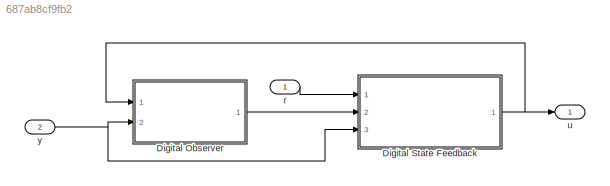
MODEL slx_687ab8cf9fb2
KIND model
CONFIG AbsTol = auto
CONFIG EnableMultiTasking = on
CONFIG FixedStep = auto
CONFIG MaxStep = auto
CONFIG MinStep = auto
CONFIG RelTol = 1e-3
CONFIG SampleTimeConstraint = Unconstrained
CONFIG SolverName = FixedStepAuto
CONFIG StartTime = 0.0
CONFIG StopTime = 10.0
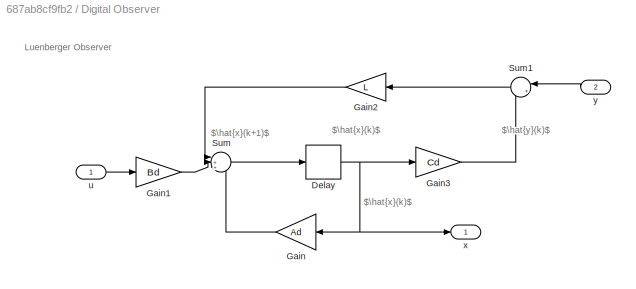
BLOCK [SubSystem] Digital Observer
  NameLocation = top
  Ports = [2, 1]
  RequestExecContextInheritance = off
BLOCK [Delay] Digital Observer/Delay
  DelayLength = 1
  InputPortMap = u0
  Ports = [1, 1]
  SampleTime = Ts
BLOCK [Gain] Digital Observer/Gain
  Gain = Ad
  Multiplication = Matrix(K*u)
BLOCK [Gain] Digital Observer/Gain1
  Gain = Bd
  Multiplication = Matrix(K*u)
BLOCK [Gain] Digital Observer/Gain2
  Gain = L
  Multiplication = Matrix(K*u)
BLOCK [Gain] Digital Observer/Gain3
  Gain = Cd
  Multiplication = Matrix(K*u)
BLOCK [Sum] Digital Observer/Sum
  Inputs = |+++
  Ports = [3, 1]
BLOCK [Sum] Digital Observer/Sum1
  Inputs = |+-
  NameLocation = top
  Ports = [2, 1]
BLOCK [Inport] Digital Observer/u
BLOCK [Outport] Digital Observer/x
BLOCK [Inport] Digital Observer/y
  Port = 2
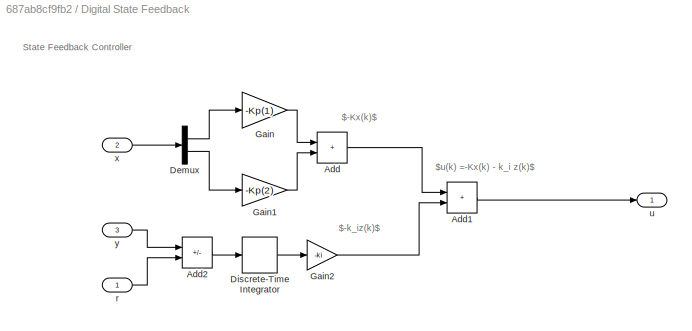
BLOCK [SubSystem] Digital State Feedback
  NameLocation = top
  Ports = [3, 1]
  RequestExecContextInheritance = off
BLOCK [Sum] Digital State Feedback/Add
  IconShape = rectangular
  Ports = [2, 1]
BLOCK [Sum] Digital State Feedback/Add1
  IconShape = rectangular
  Ports = [2, 1]
BLOCK [Sum] Digital State Feedback/Add2
  IconShape = rectangular
  Inputs = +-
  Ports = [2, 1]
BLOCK [Demux] Digital State Feedback/Demux
  Outputs = 2
  Ports = [1, 2]
BLOCK [DiscreteIntegrator] Digital State Feedback/Discrete-Time Integrator
  ICPrevOutput = DiscIntNeverNeededParam
  ICPrevScaledInput = DiscIntNeverNeededParam
  InitialConditionSetting = Auto
  IntegratorMethod = Accumulation: Forward Euler
  Ports = [1, 1]
  SampleTime = Ts
  StateName = 'IntegralAction'
BLOCK [Gain] Digital State Feedback/Gain
  Gain = -Kp(1)
BLOCK [Gain] Digital State Feedback/Gain1
  Gain = -Kp(2)
BLOCK [Gain] Digital State Feedback/Gain2
  Gain = -ki
BLOCK [Inport] Digital State Feedback/r
  NameLocation = top
BLOCK [Outport] Digital State Feedback/u
  NameLocation = top
BLOCK [Inport] Digital State Feedback/x
  NameLocation = top
  Port = 2
BLOCK [Inport] Digital State Feedback/y
  NameLocation = top
  Port = 3
BLOCK [Inport] r
  NameLocation = top
BLOCK [Outport] u
  NameLocation = top
BLOCK [Inport] y
  Port = 2
ANNOTATION Digital Observer: $\hat{x}(k)$
ANNOTATION Digital Observer: $\hat{x}(k+1)$
ANNOTATION Digital Observer: $\hat{y}(k)$
ANNOTATION Digital Observer: Luenberger Observer
ANNOTATION Digital State Feedback: $-Kx(k)$
ANNOTATION Digital State Feedback: $-k_iz(k)$
ANNOTATION Digital State Feedback: $u(k) =-Kx(k) - k_i z(k)$
ANNOTATION Digital State Feedback: State Feedback Controller
NET Digital Observer/Delay:1 -> Digital Observer/Gain3:1, Digital Observer/Gain:1, Digital Observer/x:1
LINE Digital Observer/Gain1:1 -> Digital Observer/Sum:2
LINE Digital Observer/Gain2:1 -> Digital Observer/Sum:1
LINE Digital Observer/Gain3:1 -> Digital Observer/Sum1:2
LINE Digital Observer/Gain:1 -> Digital Observer/Sum:3
LINE Digital Observer/Sum1:1 -> Digital Observer/Gain2:1
LINE Digital Observer/Sum:1 -> Digital Observer/Delay:1
LINE Digital Observer/u:1 -> Digital Observer/Gain1:1
LINE Digital Observer/y:1 -> Digital Observer/Sum1:1
LINE Digital Observer:1 -> Digital State Feedback:2
LINE Digital State Feedback/Add1:1 -> Digital State Feedback/u:1
LINE Digital State Feedback/Add2:1 -> Digital State Feedback/Discrete-Time Integrator:1
LINE Digital State Feedback/Add:1 -> Digital State Feedback/Add1:1
LINE Digital State Feedback/Demux:1 -> Digital State Feedback/Gain:1
LINE Digital State Feedback/Demux:2 -> Digital State Feedback/Gain1:1
LINE Digital State Feedback/Discrete-Time Integrator:1 -> Digital State Feedback/Gain2:1
LINE Digital State Feedback/Gain1:1 -> Digital State Feedback/Add:2
LINE Digital State Feedback/Gain2:1 -> Digital State Feedback/Add1:2
LINE Digital State Feedback/Gain:1 -> Digital State Feedback/Add:1
LINE Digital State Feedback/r:1 -> Digital State Feedback/Add2:2
LINE Digital State Feedback/x:1 -> Digital State Feedback/Demux:1
LINE Digital State Feedback/y:1 -> Digital State Feedback/Add2:1
NET Digital State Feedback:1 -> Digital Observer:1, u:1
LINE r:1 -> Digital State Feedback:1
NET y:1 -> Digital Observer:2, Digital State Feedback:3
note: NET lines group one-source signal fan-out (src -> all destinations, sorted); 1:1 wires keep LINE
